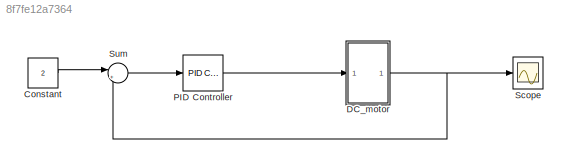
MODEL slx_8f7fe12a7364
KIND model
CONFIG AbsTol = auto
CONFIG EnableMultiTasking = off
CONFIG FixedStep = auto
CONFIG MaxStep = auto
CONFIG MinStep = auto
CONFIG RelTol = 1e-3
CONFIG SampleTimeConstraint = Unconstrained
CONFIG SolverName = VariableStepAuto
CONFIG StartTime = 0.0
CONFIG StopTime = 0.5
BLOCK [Constant] Constant
  Value = 2
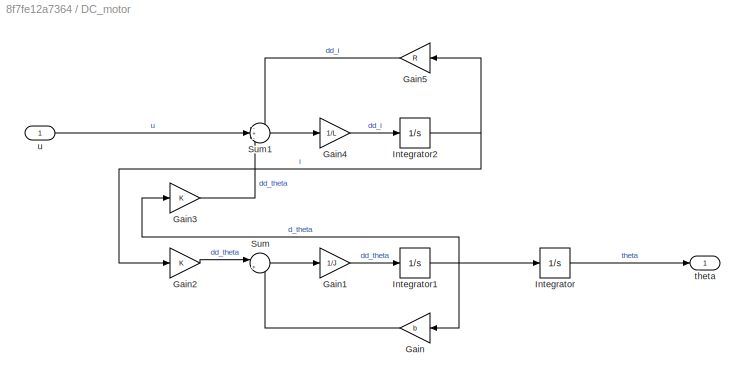
BLOCK [SubSystem] DC_motor
  Ports = [1, 1]
  RequestExecContextInheritance = off
BLOCK [Gain] DC_motor/Gain
  Gain = b
  NameLocation = top
BLOCK [Gain] DC_motor/Gain1
  Gain = 1/J
BLOCK [Gain] DC_motor/Gain2
  Gain = K
BLOCK [Gain] DC_motor/Gain3
  Gain = K
BLOCK [Gain] DC_motor/Gain4
  Gain = 1/L
BLOCK [Gain] DC_motor/Gain5
  Gain = R
  NameLocation = top
BLOCK [Integrator] DC_motor/Integrator
  Ports = [1, 1]
BLOCK [Integrator] DC_motor/Integrator1
  Ports = [1, 1]
BLOCK [Integrator] DC_motor/Integrator2
  Ports = [1, 1]
BLOCK [Sum] DC_motor/Sum
  Inputs = |+-
  Ports = [2, 1]
BLOCK [Sum] DC_motor/Sum1
  Inputs = -+-
  Ports = [3, 1]
BLOCK [Outport] DC_motor/theta
BLOCK [Inport] DC_motor/u
BLOCK [Reference] PID Controller  REF=slpidlib/PID Controller
  Ports = [1, 1]
  SourceBlock = slpidlib/PID Controller
  SourceProductBaseCode = SL
  SourceType = PID 1dof
BLOCK [Scope] Scope
  Floating = off
  NumInputPorts = 1
  Ports = [1]
  ScopeSpecificationString = Simulink.scopes.TimeScopeBlockCfg('CurrentConfiguration', extmgr.ConfigurationSet(extmgr.Configuration('Core','General UI',true),extmgr.Configuration('Core','Source UI',true),extmgr.Configuration('Sources','WiredSimulink',true),extmgr.Configuration('Visuals','Time Domain',true,'SerializedDisplays',{struct('MinYLimReal','-0.31593','MaxYLimReal','2.84339','YLabelReal','','MinYLimMag','0.00000','MaxY...<+1501ch>
BLOCK [Sum] Sum
  Inputs = |+-
  Ports = [2, 1]
LINE Constant:1 -> Sum:1
LINE DC_motor/Gain1:1 -> DC_motor/Integrator1:1
LINE DC_motor/Gain2:1 -> DC_motor/Sum:1
LINE DC_motor/Gain3:1 -> DC_motor/Sum1:3
LINE DC_motor/Gain4:1 -> DC_motor/Integrator2:1
LINE DC_motor/Gain5:1 -> DC_motor/Sum1:1
LINE DC_motor/Gain:1 -> DC_motor/Sum:2
NET DC_motor/Integrator1:1 -> DC_motor/Gain3:1, DC_motor/Gain:1, DC_motor/Integrator:1
NET DC_motor/Integrator2:1 -> DC_motor/Gain2:1, DC_motor/Gain5:1
LINE DC_motor/Integrator:1 -> DC_motor/theta:1
LINE DC_motor/Sum1:1 -> DC_motor/Gain4:1
LINE DC_motor/Sum:1 -> DC_motor/Gain1:1
LINE DC_motor/u:1 -> DC_motor/Sum1:2
NET DC_motor:1 -> Scope:1, Sum:2
LINE PID Controller:1 -> DC_motor:1
LINE Sum:1 -> PID Controller:1
note: NET lines group one-source signal fan-out (src -> all destinations, sorted); 1:1 wires keep LINE
